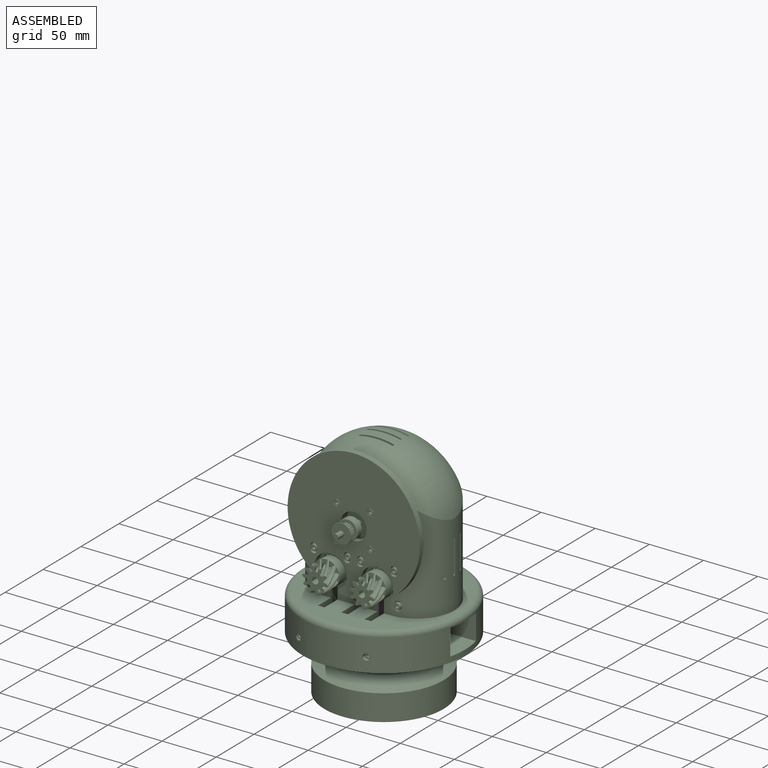
[diagram: assembled view]
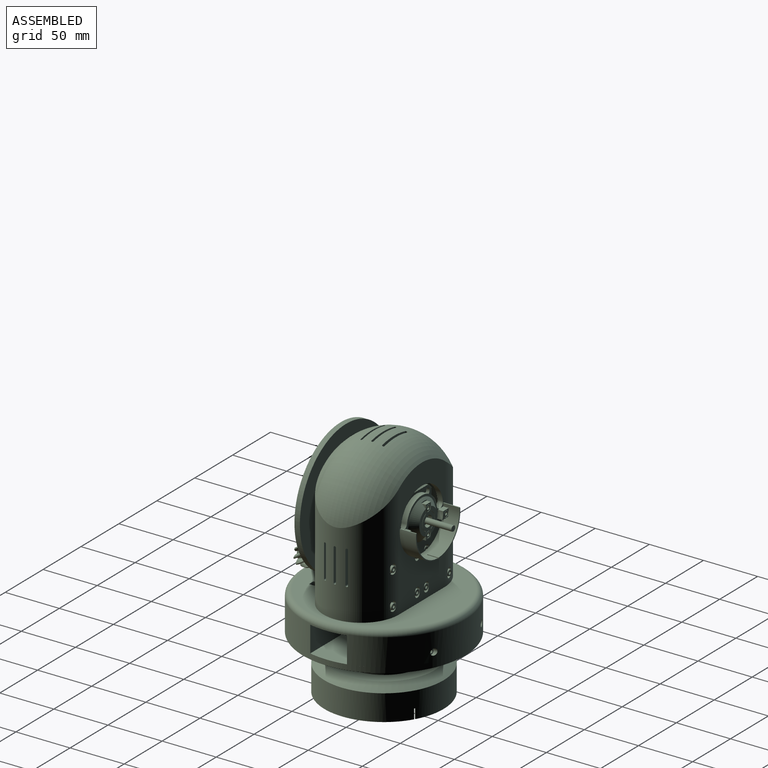
[diagram: assembled view, second angle]
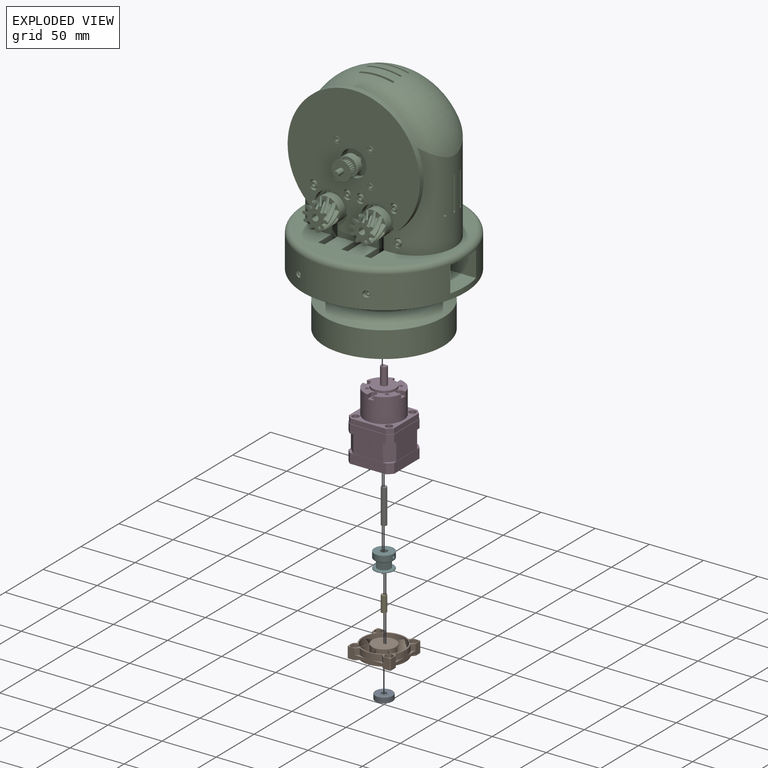
[diagram: exploded view]
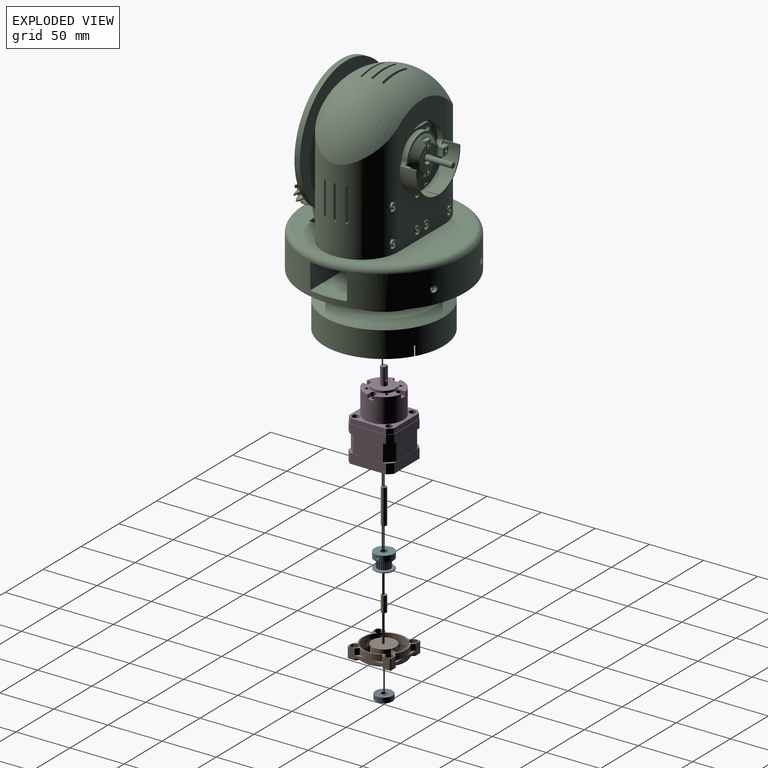
[diagram: exploded view, second angle]
FCSTD DOCUMENT  (FreeCAD 0.19R24276 (Git))
Label: AssemblyArt1
License: All rights reserved
LicenseURL: http://en.wikipedia.org/wiki/All_rights_reserved
objects: Part::FeaturePython×68, App::Link×19, PartDesign::CoordinateSystem×14, PartDesign::Line×12, App::DocumentObjectGroup×8, App::Part×7, Part::Feature×5, Part::Cylinder×2, App::FeaturePython×1
note: 101 computed B-rep shape members (.brp) not serialized (recipe doc carries the construction recipe, not evaluated geometry)
EXTERNAL_REF file=Art1Bot.fcstd obj=LCS_Art1Bot
EXTERNAL_REF file=Art1Bot.fcstd obj=Body001
EXTERNAL_REF file=Art1Bot.fcstd obj=LCS_Top
EXTERNAL_REF file=Art1Top.FCStd obj=LCS_Bot
EXTERNAL_REF file=Art1Top.FCStd obj=Body
EXTERNAL_REF file=Art1FanHolder.FCStd obj=LCS_Body
EXTERNAL_REF file=Art1Top.FCStd obj=LCS_Fan1
EXTERNAL_REF file=Art1FanHolder.FCStd obj=Body
EXTERNAL_REF file=Art1Top.FCStd obj=LCS_Fan2
EXTERNAL_REF file=Art1Body.fcstd obj=LCS_Bot
EXTERNAL_REF file=Art1Top.FCStd obj=LCS_Top
EXTERNAL_REF file=Art1Body.fcstd obj=Body
EXTERNAL_REF file=Art1Body.fcstd obj=LCS_Optodisk
EXTERNAL_REF file=Art23Optodisk.FCStd obj=LCS_Art23Optodisk
EXTERNAL_REF file=Art23Optodisk.FCStd obj=Body
EXTERNAL_REF file=Art1Body.fcstd obj=LCS_Bearing
EXTERNAL_REF file=Art1Body.fcstd obj=LCS_BearingFix
EXTERNAL_REF file=CommonBearingFixThrough.FCStd obj=LCS_CommonBearingFixThrough
EXTERNAL_REF file=CommonBearingFixThrough.FCStd obj=Body
EXTERNAL_REF file=Art1Body.fcstd obj=LCS_Motor2A
EXTERNAL_REF file=Art1Body.fcstd obj=LCS_Motor2V
EXTERNAL_REF file=Art1Body.fcstd obj=LCS_Motor3
EXTERNAL_REF file=Art2MotorGear.FCStd obj=LCS_Art2MotorGear
EXTERNAL_REF file=Art2MotorGear.FCStd obj=Body
EXTERNAL_REF file=Art1FanHolder.FCStd obj=LCS_Fan
EXTERNAL_REF file=Art1Top.FCStd obj=HoleAxis_9
EXTERNAL_REF file=Art1Top.FCStd obj=HoleAxis_8
EXTERNAL_REF file=Art1Top.FCStd obj=HoleAxis_7
EXTERNAL_REF file=Art1Body.fcstd obj=HoleAxis_15
EXTERNAL_REF file=Art1Bot.fcstd obj=HoleAxis_1
EXTERNAL_REF file=Art1Bot.fcstd obj=HoleAxis_3
EXTERNAL_REF file=Art1Bot.fcstd obj=HoleAxis_2
EXTERNAL_REF file=Art1FanHolder.FCStd obj=HoleAxis_7
EXTERNAL_REF file=Art1FanHolder.FCStd obj=HoleAxis_1
EXTERNAL_REF file=Art1FanHolder.FCStd obj=HoleAxis_4
EXTERNAL_REF file=Art1FanHolder.FCStd obj=HoleAxis_6
EXTERNAL_REF file=Art1Top.FCStd obj=HoleAxis_11
EXTERNAL_REF file=Art1Top.FCStd obj=HoleAxis_10
EXTERNAL_REF file=Art1Top.FCStd obj=HoleAxis_6
EXTERNAL_REF file=Art1Top.FCStd obj=HoleAxis_5
EXTERNAL_REF file=Art1Top.FCStd obj=HoleAxis_4
EXTERNAL_REF file=Art1Top.FCStd obj=HoleAxis_3
EXTERNAL_REF file=Art1Top.FCStd obj=HoleAxis_1
EXTERNAL_REF file=Art1Top.FCStd obj=HoleAxis_2
EXTERNAL_REF file=Art1FanHolder.FCStd obj=HoleAxis_5
EXTERNAL_REF file=Art1FanHolder.FCStd obj=HoleAxis_2
EXTERNAL_REF file=Art2BodyACover1.FCStd obj=HoleAxis_1
EXTERNAL_REF file=Art2BodyACover1.FCStd obj=HoleAxis_7
EXTERNAL_REF file=Art2BodyACover1.FCStd obj=HoleAxis_2
EXTERNAL_REF file=Art2BodyACover1.FCStd obj=HoleAxis_6
EXTERNAL_REF file=Art2BodyACover1.FCStd obj=HoleAxis_3
EXTERNAL_REF file=Art2BodyACover1.FCStd obj=HoleAxis_4
EXTERNAL_REF file=Art2BodyACover1.FCStd obj=HoleAxis_5
EXTERNAL_REF file=Art2BodyACover1.FCStd obj=HoleAxis_8
EXTERNAL_REF file=Art1Body.fcstd obj=LCS_Art2BodyCover1
EXTERNAL_REF file=Art2BodyACover1.FCStd obj=LCS_Art2BodyACover1
EXTERNAL_REF file=Art2BodyACover1.FCStd obj=Body
EXTERNAL_REF file=Art1Body.fcstd obj=HoleAxis_5
EXTERNAL_REF file=Art1Body.fcstd obj=HoleAxis_6
EXTERNAL_REF file=Art1Body.fcstd obj=HoleAxis_12
EXTERNAL_REF file=Art1Body.fcstd obj=HoleAxis_11
EXTERNAL_REF file=Art1Body.fcstd obj=HoleAxis_7
EXTERNAL_REF file=Art1Body.fcstd obj=HoleAxis_8
EXTERNAL_REF file=Art1Body.fcstd obj=HoleAxis_10
EXTERNAL_REF file=Art1Body.fcstd obj=HoleAxis_9
EXTERNAL_REF file=Art1Body.fcstd obj=HoleAxis_14
EXTERNAL_REF file=Art1Body.fcstd obj=HoleAxis_16
EXTERNAL_REF file=Art1Body.fcstd obj=HoleAxis_13
EXTERNAL_REF file=CommonBearingFixThrough.FCStd obj=HoleAxis_2
EXTERNAL_REF file=CommonBearingFixThrough.FCStd obj=HoleAxis_1
EXTERNAL_REF file=Art23Optodisk.FCStd obj=HoleAxis_2
EXTERNAL_REF file=Art23Optodisk.FCStd obj=HoleAxis_1
EXTERNAL_REF file=Art1Body.fcstd obj=HoleAxis_3
EXTERNAL_REF file=Art1Body.fcstd obj=HoleAxis_4
EXTERNAL_REF file=Art1Body.fcstd obj=HoleAxis_1
EXTERNAL_REF file=Art1Body.fcstd obj=HoleAxis_2
EXTERNAL_REF file=Art2MotorGear.FCStd obj=HoleAxis_2
EXTERNAL_REF file=Art2MotorGear.FCStd obj=HoleAxis_1

FEATURE [PartDesign::CoordinateSystem] LCS_Origin
  AttacherType = Attacher::AttachEngine3D
  MapMode = 2
  Support = -> [X_Axis]
FEATURE [App::DocumentObjectGroup] Constraints
FEATURE [App::FeaturePython] Variables  # WARN: FeaturePython — macro-defined, semantics opaque (R4)
FEATURE [App::Link] Art1Bot_Art1Bot
  AssemblyType = Asm4EE
  AttachedBy = #LCS_Art1Bot
  AttachedTo = Parent Assembly#LCS_Origin
  AttachmentOffset = pos=(0,0,0) rot=(0.866025,0.5,0;3.14159rad)
  ElementCount = 0
  LinkPlacement = pos=(6.6e-15,-7e-15,-30) rot=(0,0,1;2.61799rad)
  LinkTransform = false
  Placement = pos=(6.6e-15,-7e-15,-30) rot=(0,0,1;2.61799rad)
  Scale = 1
  ScaleVector = (1,1,1)
  ShowElement = true
  expr: Placement = LCS_Origin.Placement * AttachmentOffset * Art1Bot#LCS_Art1Bot.Placement ^ -1
FEATURE [App::Link] Art1Top_Art1Top
  AssemblyType = Asm4EE
  AttachedBy = #LCS_Bot
  AttachedTo = Art1Bot_Art1Bot#LCS_Top
  AttachmentOffset = pos=(0,0,2) rot=(0,0,1;0.711113rad)
  ElementCount = 0
  LinkPlacement = pos=(-0.000356937,0.000307489,7) rot=(0,0,1;4.71239rad)
  LinkTransform = false
  Placement = pos=(-0.000356937,0.000307489,7) rot=(0,0,1;4.71239rad)
  Scale = 1
  ScaleVector = (1,1,1)
  ShowElement = true
  expr: Placement = Art1Bot_Art1Bot.Placement * Art1Bot#LCS_Top.Placement * AttachmentOffset * Art1Top#LCS_Bot.Placement ^ -1
FEATURE [Part::Feature] Part__Feature001  label="fan-40x40mm"
FEATURE [PartDesign::Line] HoleAxis_7
  AttacherType = Attacher::AttachEngineLine
  Length = 6.05899
  MapMode = 19
  Placement = pos=(-15.9948,-15.9948,6.76) rot=(0,0,1;1.5708rad)
  ResizeMode = 1
  Support = -> [Part__Feature001]
FEATURE [PartDesign::Line] HoleAxis_8
  AttacherType = Attacher::AttachEngineLine
  Length = 6.05899
  MapMode = 19
  Placement = pos=(-15.9948,15.9948,6.76) rot=(0,0,1;0rad)
  ResizeMode = 1
  Support = -> [Part__Feature001]
FEATURE [PartDesign::Line] HoleAxis_6
  AttacherType = Attacher::AttachEngineLine
  Length = 6.05899
  MapMode = 19
  Placement = pos=(15.9948,-15.9948,6.76) rot=(0,0,1;3.14159rad)
  ResizeMode = 1
  Support = -> [Part__Feature001]
FEATURE [PartDesign::Line] HoleAxis_5
  AttacherType = Attacher::AttachEngineLine
  Length = 6.05899
  MapMode = 19
  Placement = pos=(15.9948,15.9948,6.76) rot=(0,0,1;4.71239rad)
  ResizeMode = 1
  Support = -> [Part__Feature001]
FEATURE [PartDesign::CoordinateSystem] LCS_0001
  AttacherType = Attacher::AttachEngine3D
  MapMode = 2
  Support = -> [X_Axis002]
FEATURE [PartDesign::CoordinateSystem] LCS_Fan001
  AttacherType = Attacher::AttachEngine3D
  AttachmentOffset = pos=(0,0,-2.21) rot=(0,0,1;0rad)
  MapMode = 45
  Placement = pos=(-5e-16,5e-16,-4e-16) rot=(0,0,1;0rad)
  Support = -> [Part__Feature001]
FEATURE [App::Part] Fan_40x40
  Group = -> [LCS_0001,Part__Feature001,LCS_Fan001,HoleAxis_5,HoleAxis_6,HoleAxis_7,HoleAxis_8]
  Origin = -> Origin002
FEATURE [App::DocumentObjectGroup] Group001  label="Fans"
  Group = -> [Fan_40x40]
FEATURE [App::Link] Art1FanHolder_Art1FanHolder
  AssemblyType = Asm4EE
  AttachedBy = #LCS_Body
  AttachedTo = Art1Top_Art1Top#LCS_Fan1
  AttachmentOffset = pos=(0,0,0) rot=(0,1,0;3.14159rad)
  ElementCount = 0
  LinkPlacement = pos=(40.869,0.000324113,37.8693) rot=(0.357407,0.357407,-0.862856;4.56541rad)
  LinkTransform = false
  Placement = pos=(40.869,0.000324113,37.8693) rot=(0.357407,0.357407,-0.862856;4.56541rad)
  Scale = 1
  ScaleVector = (1,1,1)
  ShowElement = true
  expr: Placement = Art1Top_Art1Top.Placement * Art1Top#LCS_Fan1.Placement * AttachmentOffset * Art1FanHolder#LCS_Body.Placement ^ -1
FEATURE [App::Link] Art1FanHolder_Art1FanHolder001
  AssemblyType = Asm4EE
  AttachedBy = #LCS_Body
  AttachedTo = Art1Top_Art1Top#LCS_Fan2
  AttachmentOffset = pos=(0,0,0) rot=(0,0,1;3.14159rad)
  ElementCount = 0
  LinkPlacement = pos=(-40.8697,0.000290866,37.8693) rot=(0.357407,-0.357407,0.862856;4.56541rad)
  LinkTransform = false
  Placement = pos=(-40.8697,0.000290866,37.8693) rot=(0.357407,-0.357407,0.862856;4.56541rad)
  Scale = 1
  ScaleVector = (1,1,1)
  ShowElement = true
  expr: Placement = Art1Top_Art1Top.Placement * Art1Top#LCS_Fan2.Placement * AttachmentOffset * Art1FanHolder#LCS_Body.Placement ^ -1
FEATURE [App::Link] Art1Body_Art1Body
  AssemblyType = Asm4EE
  AttachedBy = #LCS_Bot
  AttachedTo = Art1Top_Art1Top#LCS_Top
  ElementCount = 0
  LinkPlacement = pos=(-0.000356937,0.000307489,25) rot=(0,0,-1;6.28318rad)
  LinkTransform = false
  Placement = pos=(-0.000356937,0.000307489,25) rot=(0,0,-1;6.28318rad)
  Scale = 1
  ScaleVector = (1,1,1)
  ShowElement = true
  expr: Placement = Art1Top_Art1Top.Placement * Art1Top#LCS_Top.Placement * AttachmentOffset * Art1Body#LCS_Bot.Placement ^ -1
FEATURE [App::Link] Art23Optodisk_Art23Optodisk
  AssemblyType = Asm4EE
  AttachedBy = #LCS_Art23Optodisk
  AttachedTo = Art1Body_Art1Body#LCS_Optodisk
  AttachmentOffset = pos=(0,0,0) rot=(0,0,1;3.14159rad)
  ElementCount = 0
  LinkPlacement = pos=(-0.000371174,35.0003,123) rot=(1,0,0;4.71239rad)
  LinkTransform = false
  Placement = pos=(-0.000371174,35.0003,123) rot=(1,0,0;4.71239rad)
  Scale = 1
  ScaleVector = (1,1,1)
  ShowElement = true
  expr: Placement = Art1Body_Art1Body.Placement * Art1Body#LCS_Optodisk.Placement * AttachmentOffset * Art23Optodisk#LCS_Art23Optodisk.Placement ^ -1
FEATURE [PartDesign::CoordinateSystem] LCS_0
  AttacherType = Attacher::AttachEngine3D
  MapMode = 2
  Support = -> [X_Axis003]
FEATURE [Part::Feature] Compound001  label="Bearing 625ZZ"
FEATURE [App::Part] Bearing_625ZZ
  Group = -> [LCS_0,Compound001]
  Origin = -> Origin003
FEATURE [App::DocumentObjectGroup] Group  label="Bearing"
  Group = -> [Bearing_625ZZ]
FEATURE [App::Link] Bearing_625ZZ001
  AssemblyType = Asm4EE
  AttachedBy = #LCS_0
  AttachedTo = Art1Body_Art1Body#LCS_Bearing
  ElementCount = 0
  LinkPlacement = pos=(-0.000369953,32.0003,123) rot=(1,0,0;4.71239rad)
  LinkTransform = false
  Placement = pos=(-0.000369953,32.0003,123) rot=(1,0,0;4.71239rad)
  Scale = 1
  ScaleVector = (1,1,1)
  ShowElement = true
  expr: Placement = Art1Body_Art1Body.Placement * Art1Body#LCS_Bearing.Placement * AttachmentOffset * LCS_0.Placement ^ -1
FEATURE [App::Link] CommonBearingFixThrough_CommonBearingFixThrough
  AssemblyType = Asm4EE
  AttachedBy = #LCS_CommonBearingFixThrough
  AttachedTo = Art1Body_Art1Body#LCS_BearingFix
  ElementCount = 0
  LinkPlacement = pos=(-0.000371987,37.0003,123) rot=(0.57735,0.57735,0.57735;4.18879rad)
  LinkTransform = false
  Placement = pos=(-0.000371987,37.0003,123) rot=(0.57735,0.57735,0.57735;4.18879rad)
  Scale = 1
  ScaleVector = (1,1,1)
  ShowElement = true
  expr: Placement = Art1Body_Art1Body.Placement * Art1Body#LCS_BearingFix.Placement * AttachmentOffset * CommonBearingFixThrough#LCS_CommonBearingFixThrough.Placement ^ -1
FEATURE [Part::Feature] Pocket007001  label="Nema17GearBox"
FEATURE [PartDesign::CoordinateSystem] LCS_Nema17_GearBox
  AttacherType = Attacher::AttachEngine3D
  MapMode = 45
  Placement = pos=(1.59e-14,0,37.75) rot=(0,0,-1;0rad)
  Support = -> [Pocket007001]
FEATURE [App::Link] Nema17_GearBox001
  AssemblyType = Asm4EE
  AttachedBy = #LCS_Nema17_GearBox
  AttachedTo = Art1Body_Art1Body#LCS_Motor2A
  AttachmentOffset = pos=(0,0,-22.5) rot=(0,0,1;0rad)
  ElementCount = 0
  LinkPlacement = pos=(21.4996,29.0503,79.7) rot=(-0.57735,0.57735,-0.57735;4.18879rad)
  LinkTransform = false
  Placement = pos=(21.4996,29.0503,79.7) rot=(-0.57735,0.57735,-0.57735;4.18879rad)
  Scale = 1
  ScaleVector = (1,1,1)
  ShowElement = true
  expr: Placement = Art1Body_Art1Body.Placement * Art1Body#LCS_Motor2A.Placement * AttachmentOffset * LCS_Nema17_GearBox.Placement ^ -1
FEATURE [App::Link] Nema17_GearBox002
  AssemblyType = Asm4EE
  AttachedBy = #LCS_Nema17_GearBox
  AttachedTo = Art1Body_Art1Body#LCS_Motor2V
  AttachmentOffset = pos=(0,0,-22.5) rot=(0,0,1;0rad)
  ElementCount = 0
  LinkPlacement = pos=(-21.5004,29.0503,79.7) rot=(-0.57735,0.57735,-0.57735;4.18879rad)
  LinkTransform = false
  Placement = pos=(-21.5004,29.0503,79.7) rot=(-0.57735,0.57735,-0.57735;4.18879rad)
  Scale = 1
  ScaleVector = (1,1,1)
  ShowElement = true
  expr: Placement = Art1Body_Art1Body.Placement * Art1Body#LCS_Motor2V.Placement * AttachmentOffset * LCS_Nema17_GearBox.Placement ^ -1
FEATURE [App::Link] Nema17_GearBox003
  AssemblyType = Asm4EE
  AttachedBy = #LCS_Nema17_GearBox
  AttachedTo = Art1Body_Art1Body#LCS_Motor3
  AttachmentOffset = pos=(0,0,-22.5) rot=(0,0,1;0rad)
  ElementCount = 0
  LinkPlacement = pos=(-0.000368753,29.0503,123) rot=(-0.57735,0.57735,-0.57735;4.18879rad)
  LinkTransform = false
  Placement = pos=(-0.000368753,29.0503,123) rot=(-0.57735,0.57735,-0.57735;4.18879rad)
  Scale = 1
  ScaleVector = (1,1,1)
  ShowElement = true
  expr: Placement = Art1Body_Art1Body.Placement * Art1Body#LCS_Motor3.Placement * AttachmentOffset * LCS_Nema17_GearBox.Placement ^ -1
FEATURE [PartDesign::CoordinateSystem] LCS_Nema17_Gear
  AttacherType = Attacher::AttachEngine3D
  MapMode = 11
  Placement = pos=(9e-16,-4e-16,66.3) rot=(0.912871,0.408248,0;3.14159rad)
  Support = -> [Pocket007001]
FEATURE [App::Link] Art2MotorGear_Art2MotorGear
  AssemblyType = Asm4EE
  AttachedBy = #LCS_Art2MotorGear
  AttachedTo = Nema17_GearBox002#LCS_Nema17_Gear
  AttachmentOffset = pos=(0,0,0) rot=(0,0,1;1.5708rad)
  ElementCount = 0
  LinkPlacement = pos=(-21.5003,-45.2497,79.7) rot=(-0.518207,-0.604757,0.604757;4.09781rad)
  LinkTransform = false
  Placement = pos=(-21.5003,-45.2497,79.7) rot=(-0.518207,-0.604757,0.604757;4.09781rad)
  Scale = 1
  ScaleVector = (1,1,1)
  ShowElement = true
  expr: Placement = Nema17_GearBox002.Placement * LCS_Nema17_Gear.Placement * AttachmentOffset * Art2MotorGear#LCS_Art2MotorGear.Placement ^ -1
FEATURE [App::Link] Art2MotorGear_Art2MotorGear001
  AssemblyType = Asm4EE
  AttachedBy = #LCS_Art2MotorGear
  AttachedTo = Nema17_GearBox001#LCS_Nema17_Gear
  AttachmentOffset = pos=(0,0,0) rot=(0,0,1;1.5708rad)
  ElementCount = 0
  LinkPlacement = pos=(21.4997,-45.2497,79.7) rot=(-0.518207,-0.604757,0.604757;4.09781rad)
  LinkTransform = false
  Placement = pos=(21.4997,-45.2497,79.7) rot=(-0.518207,-0.604757,0.604757;4.09781rad)
  Scale = 1
  ScaleVector = (1,1,1)
  ShowElement = true
  expr: Placement = Nema17_GearBox001.Placement * LCS_Nema17_Gear.Placement * AttachmentOffset * Art2MotorGear#LCS_Art2MotorGear.Placement ^ -1
FEATURE [App::Link] Fan_40x40001
  AssemblyType = Asm4EE
  AttachedBy = #LCS_Fan001
  AttachedTo = Art1FanHolder_Art1FanHolder001#LCS_Fan
  AttachmentOffset = pos=(0,0,3) rot=(0,0,1;0rad)
  ElementCount = 0
  LinkPlacement = pos=(-38.7484,0.000291729,39.9907) rot=(0.357407,-0.357407,0.862856;4.56541rad)
  LinkTransform = false
  Placement = pos=(-38.7484,0.000291729,39.9907) rot=(0.357407,-0.357407,0.862856;4.56541rad)
  Scale = 1
  ScaleVector = (1,1,1)
  ShowElement = true
  expr: Placement = Art1FanHolder_Art1FanHolder001.Placement * Art1FanHolder#LCS_Fan.Placement * AttachmentOffset * LCS_Fan001.Placement ^ -1
FEATURE [App::Link] Fan_40x40002
  AssemblyType = Asm4EE
  AttachedBy = #LCS_Fan001
  AttachedTo = Art1FanHolder_Art1FanHolder#LCS_Fan
  AttachmentOffset = pos=(0,0,3) rot=(0,0,1;0rad)
  ElementCount = 0
  LinkPlacement = pos=(38.7477,0.00032325,39.9907) rot=(0.357407,0.357407,-0.862856;4.56541rad)
  LinkTransform = false
  Placement = pos=(38.7477,0.00032325,39.9907) rot=(0.357407,0.357407,-0.862856;4.56541rad)
  Scale = 1
  ScaleVector = (1,1,1)
  ShowElement = true
  expr: Placement = Art1FanHolder_Art1FanHolder.Placement * Art1FanHolder#LCS_Fan.Placement * AttachmentOffset * LCS_Fan001.Placement ^ -1
FEATURE [Part::FeaturePython] Screw  label="M3x25-Screw"  # WARN: FeaturePython — macro-defined, semantics opaque (R4)
  AssemblyType = Asm4EE
  AttachedBy = Origin
  AttachedTo = Art1Top_Art1Top#HoleAxis_9
  Placement = pos=(14.9996,25.9811,22) rot=(0,0,-1;0.523598rad)
  diameter = 4
  invert = false
  length = 8
  lengthCustom = 25
  matchOuter = false
  offset = 0
  thread = false
  type = 33
  expr: Placement = Art1Top_Art1Top.Placement * Art1Top#HoleAxis_9.Placement * AttachmentOffset
FEATURE [Part::FeaturePython] Screw001  label="M3x25-Screw005"  # WARN: FeaturePython — macro-defined, semantics opaque (R4)
  AssemblyType = Asm4EE
  AttachedBy = Origin
  AttachedTo = Art1Top_Art1Top#HoleAxis_8
  Placement = pos=(14.9997,-25.9804,22) rot=(0,0,1;3.66519rad)
  diameter = 4
  invert = false
  length = 8
  lengthCustom = 25
  matchOuter = false
  offset = 0
  thread = false
  type = 33
  expr: Placement = Art1Top_Art1Top.Placement * Art1Top#HoleAxis_8.Placement * AttachmentOffset
FEATURE [Part::FeaturePython] Screw002  label="M3x25-Screw006"  # WARN: FeaturePython — macro-defined, semantics opaque (R4)
  AssemblyType = Asm4EE
  AttachedBy = Origin
  AttachedTo = Art1Top_Art1Top#HoleAxis_7
  Placement = pos=(-30.0004,0.000295287,22) rot=(0,0,1;1.5708rad)
  diameter = 4
  invert = false
  length = 8
  lengthCustom = 25
  matchOuter = false
  offset = 0
  thread = false
  type = 33
  expr: Placement = Art1Top_Art1Top.Placement * Art1Top#HoleAxis_7.Placement * AttachmentOffset
FEATURE [Part::FeaturePython] Nut  label="M3-Nut"  # WARN: FeaturePython — macro-defined, semantics opaque (R4)
  AssemblyType = Asm4EE
  AttachedBy = Origin
  AttachedTo = Art1Body_Art1Body#HoleAxis_15
  AttachmentOffset = pos=(0,0,0) rot=(1,0,0;3.14159rad)
  Placement = pos=(-0.00037036,33.0003,134) rot=(0,0.707107,-0.707107;3.14159rad)
  diameter = 4
  invert = false
  matchOuter = false
  offset = 0
  thread = false
  type = 7
  expr: Placement = Art1Body_Art1Body.Placement * Art1Body#HoleAxis_15.Placement * AttachmentOffset
FEATURE [Part::FeaturePython] Nut001  label="M3-Nut054"  # WARN: FeaturePython — macro-defined, semantics opaque (R4)
  AssemblyType = Asm4EE
  AttachedBy = Origin
  AttachedTo = Art1Bot_Art1Bot#HoleAxis_1
  Placement = pos=(14.9997,25.981,-0.999941) rot=(0.258819,0.965926,-3e-06;3.14158rad)
  diameter = 4
  invert = false
  matchOuter = false
  offset = 0
  thread = false
  type = 7
  expr: Placement = Art1Bot_Art1Bot.Placement * Art1Bot#HoleAxis_1.Placement * AttachmentOffset
FEATURE [Part::FeaturePython] Nut002  label="M3-Nut052"  # WARN: FeaturePython — macro-defined, semantics opaque (R4)
  AssemblyType = Asm4EE
  AttachedBy = Origin
  AttachedTo = Art1Bot_Art1Bot#HoleAxis_3
  Placement = pos=(14.9997,-25.9805,-0.999484) rot=(0.965926,0.258819,4e-06;3.14158rad)
  diameter = 4
  invert = false
  matchOuter = false
  offset = 0
  thread = false
  type = 7
  expr: Placement = Art1Bot_Art1Bot.Placement * Art1Bot#HoleAxis_3.Placement * AttachmentOffset
FEATURE [Part::FeaturePython] Nut003  label="M3-Nut053"  # WARN: FeaturePython — macro-defined, semantics opaque (R4)
  AssemblyType = Asm4EE
  AttachedBy = Origin
  AttachedTo = Art1Bot_Art1Bot#HoleAxis_2
  Placement = pos=(-30.0003,0.000254776,-1.00017) rot=(0.707107,-0.707107,7e-06;3.14159rad)
  diameter = 4
  invert = false
  matchOuter = false
  offset = 0
  thread = false
  type = 7
  expr: Placement = Art1Bot_Art1Bot.Placement * Art1Bot#HoleAxis_2.Placement * AttachmentOffset
FEATURE [Part::FeaturePython] Nut004  label="M3-Nut057"  # WARN: FeaturePython — macro-defined, semantics opaque (R4)
  AssemblyType = Asm4EE
  AttachedBy = Origin
  AttachedTo = Art1FanHolder_Art1FanHolder#HoleAxis_7
  Placement = pos=(50.4149,-15.9997,50.9508) rot=(0.678598,0.678598,0.281085;2.59356rad)
  diameter = 4
  invert = false
  matchOuter = false
  offset = 0
  thread = false
  type = 7
  expr: Placement = Art1FanHolder_Art1FanHolder.Placement * Art1FanHolder#HoleAxis_7.Placement * AttachmentOffset
FEATURE [Part::FeaturePython] Nut005  label="M3-Nut058"  # WARN: FeaturePython — macro-defined, semantics opaque (R4)
  AssemblyType = Asm4EE
  AttachedBy = Origin
  AttachedTo = Art1FanHolder_Art1FanHolder#HoleAxis_1
  Placement = pos=(27.7875,-15.9997,28.3234) rot=(0.678598,0.678598,0.281085;2.59356rad)
  diameter = 4
  invert = false
  matchOuter = false
  offset = 0
  thread = false
  type = 7
  expr: Placement = Art1FanHolder_Art1FanHolder.Placement * Art1FanHolder#HoleAxis_1.Placement * AttachmentOffset
FEATURE [Part::FeaturePython] Nut006  label="M3-Nut055"  # WARN: FeaturePython — macro-defined, semantics opaque (R4)
  AssemblyType = Asm4EE
  AttachedBy = Origin
  AttachedTo = Art1FanHolder_Art1FanHolder#HoleAxis_4
  Placement = pos=(27.7875,16.0003,28.3234) rot=(0.678598,0.678598,0.281085;2.59356rad)
  diameter = 4
  invert = false
  matchOuter = false
  offset = 0
  thread = false
  type = 7
  expr: Placement = Art1FanHolder_Art1FanHolder.Placement * Art1FanHolder#HoleAxis_4.Placement * AttachmentOffset
FEATURE [Part::FeaturePython] Nut007  label="M3-Nut059"  # WARN: FeaturePython — macro-defined, semantics opaque (R4)
  AssemblyType = Asm4EE
  AttachedBy = Origin
  AttachedTo = Art1FanHolder_Art1FanHolder#HoleAxis_6
  Placement = pos=(50.4149,16.0003,50.9508) rot=(0.678598,0.678598,0.281085;2.59356rad)
  diameter = 4
  invert = false
  matchOuter = false
  offset = 0
  thread = false
  type = 7
  expr: Placement = Art1FanHolder_Art1FanHolder.Placement * Art1FanHolder#HoleAxis_6.Placement * AttachmentOffset
FEATURE [Part::FeaturePython] Nut008  label="M3-Nut056"  # WARN: FeaturePython — macro-defined, semantics opaque (R4)
  AssemblyType = Asm4EE
  AttachedBy = Origin
  AttachedTo = Art1FanHolder_Art1FanHolder001#HoleAxis_6
  Placement = pos=(-50.4156,-15.9997,50.9508) rot=(0.678598,-0.678598,-0.281085;2.59356rad)
  diameter = 4
  invert = false
  matchOuter = false
  offset = 0
  thread = false
  type = 7
  expr: Placement = Art1FanHolder_Art1FanHolder001.Placement * Art1FanHolder#HoleAxis_6.Placement * AttachmentOffset
FEATURE [Part::FeaturePython] Nut009  label="M3-Nut060"  # WARN: FeaturePython — macro-defined, semantics opaque (R4)
  AssemblyType = Asm4EE
  AttachedBy = Origin
  AttachedTo = Art1FanHolder_Art1FanHolder001#HoleAxis_7
  Placement = pos=(-50.4156,16.0003,50.9508) rot=(0.678598,-0.678598,-0.281085;2.59356rad)
  diameter = 4
  invert = false
  matchOuter = false
  offset = 0
  thread = false
  type = 7
  expr: Placement = Art1FanHolder_Art1FanHolder001.Placement * Art1FanHolder#HoleAxis_7.Placement * AttachmentOffset
FEATURE [Part::FeaturePython] Nut010  label="M3-Nut061"  # WARN: FeaturePython — macro-defined, semantics opaque (R4)
  AssemblyType = Asm4EE
  AttachedBy = Origin
  AttachedTo = Art1FanHolder_Art1FanHolder001#HoleAxis_4
  Placement = pos=(-27.7882,-15.9997,28.3234) rot=(0.678598,-0.678598,-0.281085;2.59356rad)
  diameter = 4
  invert = false
  matchOuter = false
  offset = 0
  thread = false
  type = 7
  expr: Placement = Art1FanHolder_Art1FanHolder001.Placement * Art1FanHolder#HoleAxis_4.Placement * AttachmentOffset
FEATURE [Part::FeaturePython] Nut011  label="M3-Nut062"  # WARN: FeaturePython — macro-defined, semantics opaque (R4)
  AssemblyType = Asm4EE
  AttachedBy = Origin
  AttachedTo = Art1FanHolder_Art1FanHolder001#HoleAxis_1
  Placement = pos=(-27.7882,16.0003,28.3234) rot=(0.678598,-0.678598,-0.281085;2.59356rad)
  diameter = 4
  invert = false
  matchOuter = false
  offset = 0
  thread = false
  type = 7
  expr: Placement = Art1FanHolder_Art1FanHolder001.Placement * Art1FanHolder#HoleAxis_1.Placement * AttachmentOffset
FEATURE [Part::FeaturePython] Screw003  label="M3x8-Screw"  # WARN: FeaturePython — macro-defined, semantics opaque (R4)
  AssemblyType = Asm4EE
  AttachedBy = Origin
  AttachedTo = Fan_40x40001#HoleAxis_6
  Placement = pos=(-45.2783,-15.9945,56.0807) rot=(0.357407,0.357407,0.862856;1.71777rad)
  diameter = 4
  invert = false
  length = 2
  lengthCustom = 8
  matchOuter = false
  offset = 0
  thread = false
  type = 33
  expr: Placement = Fan_40x40001.Placement * HoleAxis_6.Placement * AttachmentOffset
FEATURE [Part::FeaturePython] Screw004  label="M3x8-Screw071"  # WARN: FeaturePython — macro-defined, semantics opaque (R4)
  AssemblyType = Asm4EE
  AttachedBy = Origin
  AttachedTo = Fan_40x40001#HoleAxis_5
  Placement = pos=(-22.6583,-15.9945,33.4607) rot=(0.382683,0,0.92388;3.14159rad)
  diameter = 4
  invert = false
  length = 2
  lengthCustom = 8
  matchOuter = false
  offset = 0
  thread = false
  type = 33
  expr: Placement = Fan_40x40001.Placement * HoleAxis_5.Placement * AttachmentOffset
FEATURE [Part::FeaturePython] Screw005  label="M3x8-Screw070"  # WARN: FeaturePython — macro-defined, semantics opaque (R4)
  AssemblyType = Asm4EE
  AttachedBy = Origin
  AttachedTo = Fan_40x40001#HoleAxis_8
  Placement = pos=(-22.6583,15.9951,33.4607) rot=(-0.357407,0.357407,-0.862856;1.71777rad)
  diameter = 4
  invert = false
  length = 2
  lengthCustom = 8
  matchOuter = false
  offset = 0
  thread = false
  type = 33
  expr: Placement = Fan_40x40001.Placement * HoleAxis_8.Placement * AttachmentOffset
FEATURE [Part::FeaturePython] Screw006  label="M3x8-Screw078"  # WARN: FeaturePython — macro-defined, semantics opaque (R4)
  AssemblyType = Asm4EE
  AttachedBy = Origin
  AttachedTo = Fan_40x40001#HoleAxis_7
  Placement = pos=(-45.2783,15.995,56.0807) rot=(0,1,0;0.785398rad)
  diameter = 4
  invert = false
  length = 2
  lengthCustom = 8
  matchOuter = false
  offset = 0
  thread = false
  type = 33
  expr: Placement = Fan_40x40001.Placement * HoleAxis_7.Placement * AttachmentOffset
FEATURE [Part::FeaturePython] Screw007  label="M3x8-Screw072"  # WARN: FeaturePython — macro-defined, semantics opaque (R4)
  AssemblyType = Asm4EE
  AttachedBy = Origin
  AttachedTo = Fan_40x40002#HoleAxis_5
  Placement = pos=(22.6576,15.9951,33.4607) rot=(0,-1,0;0.785398rad)
  diameter = 4
  invert = false
  length = 2
  lengthCustom = 8
  matchOuter = false
  offset = 0
  thread = false
  type = 33
  expr: Placement = Fan_40x40002.Placement * HoleAxis_5.Placement * AttachmentOffset
FEATURE [Part::FeaturePython] Screw008  label="M3x8-Screw075"  # WARN: FeaturePython — macro-defined, semantics opaque (R4)
  AssemblyType = Asm4EE
  AttachedBy = Origin
  AttachedTo = Fan_40x40002#HoleAxis_8
  Placement = pos=(22.6576,-15.9944,33.4607) rot=(-0.357407,-0.357407,0.862856;1.71777rad)
  diameter = 4
  invert = false
  length = 2
  lengthCustom = 8
  matchOuter = false
  offset = 0
  thread = false
  type = 33
  expr: Placement = Fan_40x40002.Placement * HoleAxis_8.Placement * AttachmentOffset
FEATURE [Part::FeaturePython] Screw009  label="M3x8-Screw073"  # WARN: FeaturePython — macro-defined, semantics opaque (R4)
  AssemblyType = Asm4EE
  AttachedBy = Origin
  AttachedTo = Fan_40x40002#HoleAxis_6
  Placement = pos=(45.2776,15.9951,56.0807) rot=(0.357407,-0.357407,-0.862856;1.71777rad)
  diameter = 4
  invert = false
  length = 2
  lengthCustom = 8
  matchOuter = false
  offset = 0
  thread = false
  type = 33
  expr: Placement = Fan_40x40002.Placement * HoleAxis_6.Placement * AttachmentOffset
FEATURE [Part::FeaturePython] Screw010  label="M3x8-Screw074"  # WARN: FeaturePython — macro-defined, semantics opaque (R4)
  AssemblyType = Asm4EE
  AttachedBy = Origin
  AttachedTo = Fan_40x40002#HoleAxis_7
  Placement = pos=(45.2776,-15.9944,56.0807) rot=(-0.382683,0,0.92388;3.14159rad)
  diameter = 4
  invert = false
  length = 2
  lengthCustom = 8
  matchOuter = false
  offset = 0
  thread = false
  type = 33
  expr: Placement = Fan_40x40002.Placement * HoleAxis_7.Placement * AttachmentOffset
FEATURE [Part::FeaturePython] Nut012  label="M3-Nut069"  # WARN: FeaturePython — macro-defined, semantics opaque (R4)
  AssemblyType = Asm4EE
  AttachedBy = Origin
  AttachedTo = Art1Top_Art1Top#HoleAxis_11
  AttachmentOffset = pos=(0,0,0) rot=(1,0,0;3.14159rad)
  Placement = pos=(-42.2839,26.0003,36.4551) rot=(0.678598,-0.678598,-0.281085;2.59356rad)
  diameter = 4
  invert = false
  matchOuter = false
  offset = 0
  thread = false
  type = 7
  expr: Placement = Art1Top_Art1Top.Placement * Art1Top#HoleAxis_11.Placement * AttachmentOffset
FEATURE [Part::FeaturePython] Nut013  label="M3-Nut063"  # WARN: FeaturePython — macro-defined, semantics opaque (R4)
  AssemblyType = Asm4EE
  AttachedBy = Origin
  AttachedTo = Art1Top_Art1Top#HoleAxis_10
  AttachmentOffset = pos=(0,0,0) rot=(1,0,0;3.14159rad)
  Placement = pos=(-42.2839,-25.9997,36.4551) rot=(0.678598,0.678598,-0.281085;3.68962rad)
  diameter = 4
  invert = false
  matchOuter = false
  offset = 0
  thread = false
  type = 7
  expr: Placement = Art1Top_Art1Top.Placement * Art1Top#HoleAxis_10.Placement * AttachmentOffset
FEATURE [Part::FeaturePython] Nut014  label="M3-Nut065"  # WARN: FeaturePython — macro-defined, semantics opaque (R4)
  AssemblyType = Asm4EE
  AttachedBy = Origin
  AttachedTo = Art1Top_Art1Top#HoleAxis_6
  AttachmentOffset = pos=(0,0,0) rot=(1,0,0;3.14159rad)
  Placement = pos=(42.2832,-25.9997,36.4551) rot=(0.678598,0.678598,0.281085;2.59356rad)
  diameter = 4
  invert = false
  matchOuter = false
  offset = 0
  thread = false
  type = 7
  expr: Placement = Art1Top_Art1Top.Placement * Art1Top#HoleAxis_6.Placement * AttachmentOffset
FEATURE [Part::FeaturePython] Nut015  label="M3-Nut066"  # WARN: FeaturePython — macro-defined, semantics opaque (R4)
  AssemblyType = Asm4EE
  AttachedBy = Origin
  AttachedTo = Art1Top_Art1Top#HoleAxis_5
  AttachmentOffset = pos=(0,0,0) rot=(1,0,0;3.14159rad)
  Placement = pos=(42.2832,26.0003,36.4551) rot=(0.678598,-0.678598,0.281085;3.68962rad)
  diameter = 4
  invert = false
  matchOuter = false
  offset = 0
  thread = false
  type = 7
  expr: Placement = Art1Top_Art1Top.Placement * Art1Top#HoleAxis_5.Placement * AttachmentOffset
FEATURE [Part::FeaturePython] Nut016  label="M3-Nut064"  # WARN: FeaturePython — macro-defined, semantics opaque (R4)
  AssemblyType = Asm4EE
  AttachedBy = Origin
  AttachedTo = Art1Top_Art1Top#HoleAxis_4
  Placement = pos=(31.4996,48.5003,33) rot=(-0.57735,-0.57735,-0.57735;2.0944rad)
  diameter = 4
  invert = false
  matchOuter = false
  offset = 0
  thread = false
  type = 7
  expr: Placement = Art1Top_Art1Top.Placement * Art1Top#HoleAxis_4.Placement * AttachmentOffset
FEATURE [Part::FeaturePython] Nut017  label="M3-Nut067"  # WARN: FeaturePython — macro-defined, semantics opaque (R4)
  AssemblyType = Asm4EE
  AttachedBy = Origin
  AttachedTo = Art1Top_Art1Top#HoleAxis_3
  AttachmentOffset = pos=(0,0,0) rot=(1,0,0;3.14159rad)
  Placement = pos=(-31.5004,48.5003,33) rot=(-0.57735,-0.57735,-0.57735;2.0944rad)
  diameter = 4
  invert = false
  matchOuter = false
  offset = 0
  thread = false
  type = 7
  expr: Placement = Art1Top_Art1Top.Placement * Art1Top#HoleAxis_3.Placement * AttachmentOffset
FEATURE [Part::FeaturePython] Nut018  label="M3-Nut068"  # WARN: FeaturePython — macro-defined, semantics opaque (R4)
  AssemblyType = Asm4EE
  AttachedBy = Origin
  AttachedTo = Art1Top_Art1Top#HoleAxis_1
  AttachmentOffset = pos=(0,0,0) rot=(1,0,0;3.14159rad)
  Placement = pos=(31.4997,-51.4997,33) rot=(-0.57735,-0.57735,-0.57735;2.0944rad)
  diameter = 4
  invert = false
  matchOuter = false
  offset = 0
  thread = false
  type = 7
  expr: Placement = Art1Top_Art1Top.Placement * Art1Top#HoleAxis_1.Placement * AttachmentOffset
FEATURE [Part::FeaturePython] Nut019  label="M3-Nut070"  # WARN: FeaturePython — macro-defined, semantics opaque (R4)
  AssemblyType = Asm4EE
  AttachedBy = Origin
  AttachedTo = Art1Top_Art1Top#HoleAxis_2
  AttachmentOffset = pos=(0,0,0) rot=(1,0,0;3.14159rad)
  Placement = pos=(-31.5003,-51.4997,33) rot=(-0.57735,-0.57735,-0.57735;2.0944rad)
  diameter = 4
  invert = false
  matchOuter = false
  offset = 0
  thread = false
  type = 7
  expr: Placement = Art1Top_Art1Top.Placement * Art1Top#HoleAxis_2.Placement * AttachmentOffset
FEATURE [Part::FeaturePython] Screw011  label="M3x8-Screw061"  # WARN: FeaturePython — macro-defined, semantics opaque (R4)
  AssemblyType = Asm4EE
  AttachedBy = Origin
  AttachedTo = Art1FanHolder_Art1FanHolder001#HoleAxis_5
  Placement = pos=(-38.7484,-25.9997,39.9907) rot=(-0.357407,0.357407,-0.862856;1.71777rad)
  diameter = 4
  invert = false
  length = 2
  lengthCustom = 8
  matchOuter = false
  offset = 0
  thread = false
  type = 33
  expr: Placement = Art1FanHolder_Art1FanHolder001.Placement * Art1FanHolder#HoleAxis_5.Placement * AttachmentOffset
FEATURE [Part::FeaturePython] Screw012  label="M3x8-Screw056"  # WARN: FeaturePython — macro-defined, semantics opaque (R4)
  AssemblyType = Asm4EE
  AttachedBy = Origin
  AttachedTo = Art1FanHolder_Art1FanHolder001#HoleAxis_2
  Placement = pos=(-38.7484,26.0003,39.9907) rot=(-0.357407,0.357407,-0.862856;1.71777rad)
  diameter = 4
  invert = false
  length = 2
  lengthCustom = 8
  matchOuter = false
  offset = 0
  thread = false
  type = 33
  expr: Placement = Art1FanHolder_Art1FanHolder001.Placement * Art1FanHolder#HoleAxis_2.Placement * AttachmentOffset
FEATURE [Part::FeaturePython] Screw013  label="M3x8-Screw062"  # WARN: FeaturePython — macro-defined, semantics opaque (R4)
  AssemblyType = Asm4EE
  AttachedBy = Origin
  AttachedTo = Art1FanHolder_Art1FanHolder#HoleAxis_2
  Placement = pos=(38.7477,-25.9997,39.9907) rot=(-0.357407,-0.357407,0.862856;1.71777rad)
  diameter = 4
  invert = false
  length = 2
  lengthCustom = 8
  matchOuter = false
  offset = 0
  thread = false
  type = 33
  expr: Placement = Art1FanHolder_Art1FanHolder.Placement * Art1FanHolder#HoleAxis_2.Placement * AttachmentOffset
FEATURE [Part::FeaturePython] Screw014  label="M3x8-Screw055"  # WARN: FeaturePython — macro-defined, semantics opaque (R4)
  AssemblyType = Asm4EE
  AttachedBy = Origin
  AttachedTo = Art1FanHolder_Art1FanHolder#HoleAxis_5
  Placement = pos=(38.7477,26.0003,39.9907) rot=(-0.357407,-0.357407,0.862856;1.71777rad)
  diameter = 4
  invert = false
  length = 2
  lengthCustom = 8
  matchOuter = false
  offset = 0
  thread = false
  type = 33
  expr: Placement = Art1FanHolder_Art1FanHolder.Placement * Art1FanHolder#HoleAxis_5.Placement * AttachmentOffset
FEATURE [Part::FeaturePython] Screw015  label="M3x40-Screw"  # WARN: FeaturePython — macro-defined, semantics opaque (R4)
  AssemblyType = Asm4EE
  AttachedBy = Origin
  AttachedTo = Art2BodyACover1_Art2BodyACover1#HoleAxis_1
  Placement = pos=(-15.5003,-36.9997,138.5) rot=(1,0,0;1.5708rad)
  diameter = 4
  invert = false
  length = 10
  lengthCustom = 40
  matchOuter = false
  offset = 0
  thread = false
  type = 33
  expr: Placement = Art2BodyACover1_Art2BodyACover1.Placement * Art2BodyACover1#HoleAxis_1.Placement * AttachmentOffset
FEATURE [Part::FeaturePython] Screw016  label="M3x40-Screw063"  # WARN: FeaturePython — macro-defined, semantics opaque (R4)
  AssemblyType = Asm4EE
  AttachedBy = Origin
  AttachedTo = Art2BodyACover1_Art2BodyACover1#HoleAxis_7
  Placement = pos=(15.4997,-36.9997,138.5) rot=(1,0,0;1.5708rad)
  diameter = 4
  invert = false
  length = 10
  lengthCustom = 40
  matchOuter = false
  offset = 0
  thread = false
  type = 33
  expr: Placement = Art2BodyACover1_Art2BodyACover1.Placement * Art2BodyACover1#HoleAxis_7.Placement * AttachmentOffset
FEATURE [Part::FeaturePython] Screw017  label="M3x40-Screw064"  # WARN: FeaturePython — macro-defined, semantics opaque (R4)
  AssemblyType = Asm4EE
  AttachedBy = Origin
  AttachedTo = Art2BodyACover1_Art2BodyACover1#HoleAxis_2
  Placement = pos=(-15.5003,-36.9997,107.5) rot=(1,0,0;1.5708rad)
  diameter = 4
  invert = false
  length = 10
  lengthCustom = 40
  matchOuter = false
  offset = 0
  thread = false
  type = 33
  expr: Placement = Art2BodyACover1_Art2BodyACover1.Placement * Art2BodyACover1#HoleAxis_2.Placement * AttachmentOffset
FEATURE [Part::FeaturePython] Screw018  label="M3x40-Screw062"  # WARN: FeaturePython — macro-defined, semantics opaque (R4)
  AssemblyType = Asm4EE
  AttachedBy = Origin
  AttachedTo = Art2BodyACover1_Art2BodyACover1#HoleAxis_6
  Placement = pos=(15.4997,-36.9997,107.5) rot=(1,0,0;1.5708rad)
  diameter = 4
  invert = false
  length = 10
  lengthCustom = 40
  matchOuter = false
  offset = 0
  thread = false
  type = 33
  expr: Placement = Art2BodyACover1_Art2BodyACover1.Placement * Art2BodyACover1#HoleAxis_6.Placement * AttachmentOffset
FEATURE [Part::FeaturePython] Screw019  label="M3x40-Screw065"  # WARN: FeaturePython — macro-defined, semantics opaque (R4)
  AssemblyType = Asm4EE
  AttachedBy = Origin
  AttachedTo = Art2BodyACover1_Art2BodyACover1#HoleAxis_3
  Placement = pos=(-37.0003,-36.9997,95.2) rot=(1,0,0;1.5708rad)
  diameter = 4
  invert = false
  length = 10
  lengthCustom = 40
  matchOuter = false
  offset = 0
  thread = false
  type = 33
  expr: Placement = Art2BodyACover1_Art2BodyACover1.Placement * Art2BodyACover1#HoleAxis_3.Placement * AttachmentOffset
FEATURE [Part::FeaturePython] Screw020  label="M3x40-Screw066"  # WARN: FeaturePython — macro-defined, semantics opaque (R4)
  AssemblyType = Asm4EE
  AttachedBy = Origin
  AttachedTo = Art2BodyACover1_Art2BodyACover1#HoleAxis_4
  Placement = pos=(-6.00034,-36.9997,95.2) rot=(1,0,0;1.5708rad)
  diameter = 4
  invert = false
  length = 10
  lengthCustom = 40
  matchOuter = false
  offset = 0
  thread = false
  type = 33
  expr: Placement = Art2BodyACover1_Art2BodyACover1.Placement * Art2BodyACover1#HoleAxis_4.Placement * AttachmentOffset
FEATURE [Part::FeaturePython] Screw021  label="M3x40-Screw067"  # WARN: FeaturePython — macro-defined, semantics opaque (R4)
  AssemblyType = Asm4EE
  AttachedBy = Origin
  AttachedTo = Art2BodyACover1_Art2BodyACover1#HoleAxis_5
  Placement = pos=(5.99966,-36.9997,95.2) rot=(1,0,0;1.5708rad)
  diameter = 4
  invert = false
  length = 10
  lengthCustom = 40
  matchOuter = false
  offset = 0
  thread = false
  type = 33
  expr: Placement = Art2BodyACover1_Art2BodyACover1.Placement * Art2BodyACover1#HoleAxis_5.Placement * AttachmentOffset
FEATURE [Part::FeaturePython] Screw022  label="M3x40-Screw068"  # WARN: FeaturePython — macro-defined, semantics opaque (R4)
  AssemblyType = Asm4EE
  AttachedBy = Origin
  AttachedTo = Art2BodyACover1_Art2BodyACover1#HoleAxis_8
  Placement = pos=(36.9997,-36.9997,95.2) rot=(1,0,0;1.5708rad)
  diameter = 4
  invert = false
  length = 10
  lengthCustom = 40
  matchOuter = false
  offset = 0
  thread = false
  type = 33
  expr: Placement = Art2BodyACover1_Art2BodyACover1.Placement * Art2BodyACover1#HoleAxis_8.Placement * AttachmentOffset
FEATURE [PartDesign::Line] HoleAxis_1
  AttacherType = Attacher::AttachEngineLine
  Length = 8.80667
  MapMode = 19
  Placement = pos=(-15.5,-15.5,37.75) rot=(0,0,1;0rad)
  ResizeMode = 1
  Support = -> [Pocket007001]
FEATURE [PartDesign::Line] HoleAxis_2
  AttacherType = Attacher::AttachEngineLine
  Length = 8.80667
  MapMode = 19
  Placement = pos=(15.5,-15.5,37.75) rot=(0,0,1;0rad)
  ResizeMode = 1
  Support = -> [Pocket007001]
FEATURE [PartDesign::Line] HoleAxis_3
  AttacherType = Attacher::AttachEngineLine
  Length = 8.80667
  MapMode = 19
  Placement = pos=(-15.5,15.5,37.75) rot=(0,0,1;0rad)
  ResizeMode = 1
  Support = -> [Pocket007001]
FEATURE [PartDesign::Line] HoleAxis_4
  AttacherType = Attacher::AttachEngineLine
  Length = 8.80667
  MapMode = 19
  Placement = pos=(15.5,15.5,37.75) rot=(0,0,1;0rad)
  ResizeMode = 1
  Support = -> [Pocket007001]
FEATURE [PartDesign::Line] HoleAxis_9
  AttacherType = Attacher::AttachEngineLine
  Length = 8.80667
  MapMode = 19
  Placement = pos=(15.5,-15.5,0) rot=(-1,0,0;3.14159rad)
  ResizeMode = 1
  Support = -> [Pocket007001]
FEATURE [PartDesign::Line] HoleAxis_10
  AttacherType = Attacher::AttachEngineLine
  Length = 8.80667
  MapMode = 19
  Placement = pos=(15.5,15.5,0) rot=(-1,0,0;3.14159rad)
  ResizeMode = 1
  Support = -> [Pocket007001]
FEATURE [PartDesign::Line] HoleAxis_11
  AttacherType = Attacher::AttachEngineLine
  Length = 8.80667
  MapMode = 19
  Placement = pos=(-15.5,15.5,0) rot=(-1,0,0;3.14159rad)
  ResizeMode = 1
  Support = -> [Pocket007001]
FEATURE [PartDesign::Line] HoleAxis_12
  AttacherType = Attacher::AttachEngineLine
  Length = 8.80667
  MapMode = 19
  Placement = pos=(-15.5,-15.5,0) rot=(-1,0,0;3.14159rad)
  ResizeMode = 1
  Support = -> [Pocket007001]
FEATURE [App::Part] Nema17_GearBox
  Group = -> [Pocket007001,LCS_Nema17_GearBox,LCS_Nema17_Gear,HoleAxis_1,HoleAxis_2,HoleAxis_3,HoleAxis_4,HoleAxis_9,HoleAxis_10,HoleAxis_11,HoleAxis_12]
  Origin = -> Origin004
FEATURE [App::DocumentObjectGroup] Group002  label="Electronics"
  Group = -> [Nema17_GearBox]
FEATURE [Part::FeaturePython] Screw023  label="M3x40-Screw071"  # WARN: FeaturePython — macro-defined, semantics opaque (R4)
  AssemblyType = Asm4EE
  AttachedBy = Origin
  AttachedTo = Nema17_GearBox002#HoleAxis_3
  AttachmentOffset = pos=(0,0,24) rot=(0,0,1;0rad)
  Placement = pos=(-37.0003,-32.6997,64.2) rot=(0.57735,-0.57735,0.57735;2.0944rad)
  diameter = 4
  invert = false
  length = 10
  lengthCustom = 40
  matchOuter = false
  offset = 0
  thread = false
  type = 33
  expr: Placement = Nema17_GearBox002.Placement * HoleAxis_3.Placement * AttachmentOffset
FEATURE [Part::FeaturePython] Screw024  label="M3x40-Screw072"  # WARN: FeaturePython — macro-defined, semantics opaque (R4)
  AssemblyType = Asm4EE
  AttachedBy = Origin
  AttachedTo = Nema17_GearBox001#HoleAxis_1
  AttachmentOffset = pos=(0,0,24) rot=(0,0,1;0rad)
  Placement = pos=(36.9997,-32.6997,64.2) rot=(0.57735,-0.57735,0.57735;2.0944rad)
  diameter = 4
  invert = false
  length = 10
  lengthCustom = 40
  matchOuter = false
  offset = 0
  thread = false
  type = 33
  expr: Placement = Nema17_GearBox001.Placement * HoleAxis_1.Placement * AttachmentOffset
FEATURE [App::Link] Art2BodyACover1_Art2BodyACover1
  AssemblyType = Asm4EE
  AttachedBy = #LCS_Art2BodyACover1
  AttachedTo = Art1Body_Art1Body#LCS_Art2BodyCover1
  AttachmentOffset = pos=(0,0,0) rot=(0,-1,0;3.14159rad)
  ElementCount = 0
  LinkPlacement = pos=(-0.000342701,-34.9997,123) rot=(-1,0,0;4.71239rad)
  LinkTransform = false
  Placement = pos=(-0.000342701,-34.9997,123) rot=(-1,0,0;4.71239rad)
  Scale = 1
  ScaleVector = (1,1,1)
  ShowElement = true
  expr: Placement = Art1Body_Art1Body.Placement * Art1Body#LCS_Art2BodyCover1.Placement * AttachmentOffset * Art2BodyACover1#LCS_Art2BodyACover1.Placement ^ -1
FEATURE [Part::FeaturePython] Screw025  label="M3x20-Screw"  # WARN: FeaturePython — macro-defined, semantics opaque (R4)
  AssemblyType = Asm4EE
  AttachedBy = Origin
  AttachedTo = Art1Body_Art1Body#HoleAxis_5
  Placement = pos=(36.9996,32.0003,95.2) rot=(0,0.707107,0.707107;3.14159rad)
  diameter = 4
  invert = false
  length = 7
  lengthCustom = 20
  matchOuter = false
  offset = 0
  thread = false
  type = 33
  expr: Placement = Art1Body_Art1Body.Placement * Art1Body#HoleAxis_5.Placement * AttachmentOffset
FEATURE [Part::FeaturePython] Screw026  label="M3x20-Screw023"  # WARN: FeaturePython — macro-defined, semantics opaque (R4)
  AssemblyType = Asm4EE
  AttachedBy = Origin
  AttachedTo = Art1Body_Art1Body#HoleAxis_6
  Placement = pos=(5.99963,32.0003,95.2) rot=(0,0.707107,0.707107;3.14159rad)
  diameter = 4
  invert = false
  length = 7
  lengthCustom = 20
  matchOuter = false
  offset = 0
  thread = false
  type = 33
  expr: Placement = Art1Body_Art1Body.Placement * Art1Body#HoleAxis_6.Placement * AttachmentOffset
FEATURE [Part::FeaturePython] Screw027  label="M3x20-Screw022"  # WARN: FeaturePython — macro-defined, semantics opaque (R4)
  AssemblyType = Asm4EE
  AttachedBy = Origin
  AttachedTo = Art1Body_Art1Body#HoleAxis_12
  Placement = pos=(36.9996,32.0003,64.2) rot=(0,0.707107,0.707107;3.14159rad)
  diameter = 4
  invert = false
  length = 7
  lengthCustom = 20
  matchOuter = false
  offset = 0
  thread = false
  type = 33
  expr: Placement = Art1Body_Art1Body.Placement * Art1Body#HoleAxis_12.Placement * AttachmentOffset
FEATURE [Part::FeaturePython] Screw028  label="M3x20-Screw024"  # WARN: FeaturePython — macro-defined, semantics opaque (R4)
  AssemblyType = Asm4EE
  AttachedBy = Origin
  AttachedTo = Art1Body_Art1Body#HoleAxis_11
  Placement = pos=(5.99963,32.0003,64.2) rot=(0,0.707107,0.707107;3.14159rad)
  diameter = 4
  invert = false
  length = 7
  lengthCustom = 20
  matchOuter = false
  offset = 0
  thread = false
  type = 33
  expr: Placement = Art1Body_Art1Body.Placement * Art1Body#HoleAxis_11.Placement * AttachmentOffset
FEATURE [Part::FeaturePython] Screw029  label="M3x20-Screw025"  # WARN: FeaturePython — macro-defined, semantics opaque (R4)
  AssemblyType = Asm4EE
  AttachedBy = Origin
  AttachedTo = Art1Body_Art1Body#HoleAxis_7
  Placement = pos=(-6.00037,32.0003,95.2) rot=(0,0.707107,0.707107;3.14159rad)
  diameter = 4
  invert = false
  length = 7
  lengthCustom = 20
  matchOuter = false
  offset = 0
  thread = false
  type = 33
  expr: Placement = Art1Body_Art1Body.Placement * Art1Body#HoleAxis_7.Placement * AttachmentOffset
FEATURE [Part::FeaturePython] Screw030  label="M3x20-Screw026"  # WARN: FeaturePython — macro-defined, semantics opaque (R4)
  AssemblyType = Asm4EE
  AttachedBy = Origin
  AttachedTo = Art1Body_Art1Body#HoleAxis_8
  Placement = pos=(-37.0004,32.0003,95.2) rot=(0,0.707107,0.707107;3.14159rad)
  diameter = 4
  invert = false
  length = 7
  lengthCustom = 20
  matchOuter = false
  offset = 0
  thread = false
  type = 33
  expr: Placement = Art1Body_Art1Body.Placement * Art1Body#HoleAxis_8.Placement * AttachmentOffset
FEATURE [Part::FeaturePython] Screw031  label="M3x20-Screw027"  # WARN: FeaturePython — macro-defined, semantics opaque (R4)
  AssemblyType = Asm4EE
  AttachedBy = Origin
  AttachedTo = Art1Body_Art1Body#HoleAxis_10
  Placement = pos=(-6.00037,32.0003,64.2) rot=(0,0.707107,0.707107;3.14159rad)
  diameter = 4
  invert = false
  length = 7
  lengthCustom = 20
  matchOuter = false
  offset = 0
  thread = false
  type = 33
  expr: Placement = Art1Body_Art1Body.Placement * Art1Body#HoleAxis_10.Placement * AttachmentOffset
FEATURE [Part::FeaturePython] Screw032  label="M3x20-Screw028"  # WARN: FeaturePython — macro-defined, semantics opaque (R4)
  AssemblyType = Asm4EE
  AttachedBy = Origin
  AttachedTo = Art1Body_Art1Body#HoleAxis_9
  Placement = pos=(-37.0004,32.0003,64.2) rot=(0,0.707107,0.707107;3.14159rad)
  diameter = 4
  invert = false
  length = 7
  lengthCustom = 20
  matchOuter = false
  offset = 0
  thread = false
  type = 33
  expr: Placement = Art1Body_Art1Body.Placement * Art1Body#HoleAxis_9.Placement * AttachmentOffset
FEATURE [Part::FeaturePython] Nut020  label="M3-Nut075"  # WARN: FeaturePython — macro-defined, semantics opaque (R4)
  AssemblyType = Asm4EE
  AttachedBy = Origin
  AttachedTo = Art1Body_Art1Body#HoleAxis_14
  AttachmentOffset = pos=(0,0,0) rot=(1,0,0;3.14159rad)
  Placement = pos=(-0.00037036,33.0003,112) rot=(0,0.707107,-0.707107;3.14159rad)
  diameter = 4
  invert = false
  matchOuter = false
  offset = 0
  thread = false
  type = 7
  expr: Placement = Art1Body_Art1Body.Placement * Art1Body#HoleAxis_14.Placement * AttachmentOffset
FEATURE [Part::FeaturePython] Nut021  label="M3-Nut072"  # WARN: FeaturePython — macro-defined, semantics opaque (R4)
  AssemblyType = Asm4EE
  AttachedBy = Origin
  AttachedTo = Art1Body_Art1Body#HoleAxis_16
  AttachmentOffset = pos=(0,0,0) rot=(1,0,0;3.14159rad)
  Placement = pos=(24.9996,33.0003,119.5) rot=(0,0.707107,-0.707107;3.14159rad)
  diameter = 4
  invert = false
  matchOuter = false
  offset = 0
  thread = false
  type = 7
  expr: Placement = Art1Body_Art1Body.Placement * Art1Body#HoleAxis_16.Placement * AttachmentOffset
FEATURE [Part::FeaturePython] Nut022  label="M3-Nut071"  # WARN: FeaturePython — macro-defined, semantics opaque (R4)
  AssemblyType = Asm4EE
  AttachedBy = Origin
  AttachedTo = Art1Body_Art1Body#HoleAxis_13
  AttachmentOffset = pos=(0,0,0) rot=(1,0,0;3.14159rad)
  Placement = pos=(-25.0004,33.0003,119.5) rot=(0,0.707107,-0.707107;3.14159rad)
  diameter = 4
  invert = false
  matchOuter = false
  offset = 0
  thread = false
  type = 7
  expr: Placement = Art1Body_Art1Body.Placement * Art1Body#HoleAxis_13.Placement * AttachmentOffset
FEATURE [Part::FeaturePython] Screw033  label="M3x8-Screw063"  # WARN: FeaturePython — macro-defined, semantics opaque (R4)
  AssemblyType = Asm4EE
  AttachedBy = Origin
  AttachedTo = CommonBearingFixThrough_CommonBearingFixThrough#HoleAxis_2
  AttachmentOffset = pos=(0,0,0) rot=(1,0,0;3.14159rad)
  Placement = pos=(-0.000372394,38.0003,134) rot=(-0.57735,-0.57735,-0.57735;2.0944rad)
  diameter = 4
  invert = false
  length = 2
  lengthCustom = 8
  matchOuter = false
  offset = 0
  thread = false
  type = 33
  expr: Placement = CommonBearingFixThrough_CommonBearingFixThrough.Placement * CommonBearingFixThrough#HoleAxis_2.Placement * AttachmentOffset
FEATURE [Part::FeaturePython] Screw034  label="M3x8-Screw065"  # WARN: FeaturePython — macro-defined, semantics opaque (R4)
  AssemblyType = Asm4EE
  AttachedBy = Origin
  AttachedTo = CommonBearingFixThrough_CommonBearingFixThrough#HoleAxis_1
  AttachmentOffset = pos=(0,0,0) rot=(1,0,0;3.14159rad)
  Placement = pos=(-0.000372394,38.0003,112) rot=(-0.57735,-0.57735,-0.57735;2.0944rad)
  diameter = 4
  invert = false
  length = 2
  lengthCustom = 8
  matchOuter = false
  offset = 0
  thread = false
  type = 33
  expr: Placement = CommonBearingFixThrough_CommonBearingFixThrough.Placement * CommonBearingFixThrough#HoleAxis_1.Placement * AttachmentOffset
FEATURE [Part::FeaturePython] Screw035  label="M3x8-Screw064"  # WARN: FeaturePython — macro-defined, semantics opaque (R4)
  AssemblyType = Asm4EE
  AttachedBy = Origin
  AttachedTo = Art23Optodisk_Art23Optodisk#HoleAxis_2
  AttachmentOffset = pos=(0,0,0) rot=(1,0,0;3.14159rad)
  Placement = pos=(24.9996,37.0003,119.5) rot=(-1,0,0;1.5708rad)
  diameter = 4
  invert = false
  length = 2
  lengthCustom = 8
  matchOuter = false
  offset = 0
  thread = false
  type = 33
  expr: Placement = Art23Optodisk_Art23Optodisk.Placement * Art23Optodisk#HoleAxis_2.Placement * AttachmentOffset
FEATURE [Part::FeaturePython] Screw036  label="M3x8-Screw067"  # WARN: FeaturePython — macro-defined, semantics opaque (R4)
  AssemblyType = Asm4EE
  AttachedBy = Origin
  AttachedTo = Art23Optodisk_Art23Optodisk#HoleAxis_1
  AttachmentOffset = pos=(0,0,0) rot=(1,0,0;3.14159rad)
  Placement = pos=(-25.0004,37.0003,119.5) rot=(-1,0,0;1.5708rad)
  diameter = 4
  invert = false
  length = 2
  lengthCustom = 8
  matchOuter = false
  offset = 0
  thread = false
  type = 33
  expr: Placement = Art23Optodisk_Art23Optodisk.Placement * Art23Optodisk#HoleAxis_1.Placement * AttachmentOffset
FEATURE [Part::FeaturePython] Screw037  label="M3x16-Screw"  # WARN: FeaturePython — macro-defined, semantics opaque (R4)
  AssemblyType = Asm4EE
  AttachedBy = Origin
  AttachedTo = Art1Body_Art1Body#HoleAxis_3
  AttachmentOffset = pos=(0,0,0) rot=(1,0,0;3.14159rad)
  Placement = pos=(31.4996,63.0003,33) rot=(-1,0,0;1.5708rad)
  diameter = 4
  invert = false
  length = 6
  lengthCustom = 16
  matchOuter = false
  offset = 0
  thread = false
  type = 33
  expr: Placement = Art1Body_Art1Body.Placement * Art1Body#HoleAxis_3.Placement * AttachmentOffset
FEATURE [Part::FeaturePython] Screw038  label="M3x16-Screw007"  # WARN: FeaturePython — macro-defined, semantics opaque (R4)
  AssemblyType = Asm4EE
  AttachedBy = Origin
  AttachedTo = Art1Body_Art1Body#HoleAxis_4
  AttachmentOffset = pos=(0,0,0) rot=(1,0,0;3.14159rad)
  Placement = pos=(-31.5004,63.0003,33) rot=(0,0.707107,0.707107;3.14159rad)
  diameter = 4
  invert = false
  length = 6
  lengthCustom = 16
  matchOuter = false
  offset = 0
  thread = false
  type = 33
  expr: Placement = Art1Body_Art1Body.Placement * Art1Body#HoleAxis_4.Placement * AttachmentOffset
FEATURE [Part::FeaturePython] Screw039  label="M3x16-Screw008"  # WARN: FeaturePython — macro-defined, semantics opaque (R4)
  AssemblyType = Asm4EE
  AttachedBy = Origin
  AttachedTo = Art1Body_Art1Body#HoleAxis_1
  AttachmentOffset = pos=(0,0,0) rot=(1,0,0;3.14159rad)
  Placement = pos=(-31.5003,-62.9997,33) rot=(0,0.707107,-0.707107;3.14159rad)
  diameter = 4
  invert = false
  length = 6
  lengthCustom = 16
  matchOuter = false
  offset = 0
  thread = false
  type = 33
  expr: Placement = Art1Body_Art1Body.Placement * Art1Body#HoleAxis_1.Placement * AttachmentOffset
FEATURE [Part::FeaturePython] Screw040  label="M3x16-Screw009"  # WARN: FeaturePython — macro-defined, semantics opaque (R4)
  AssemblyType = Asm4EE
  AttachedBy = Origin
  AttachedTo = Art1Body_Art1Body#HoleAxis_2
  AttachmentOffset = pos=(0,0,0) rot=(1,0,0;3.14159rad)
  Placement = pos=(31.4997,-62.9997,33) rot=(1,0,0;1.5708rad)
  diameter = 4
  invert = false
  length = 6
  lengthCustom = 16
  matchOuter = false
  offset = 0
  thread = false
  type = 33
  expr: Placement = Art1Body_Art1Body.Placement * Art1Body#HoleAxis_2.Placement * AttachmentOffset
FEATURE [Part::FeaturePython] Nut023  label="M3-Nut076"  # WARN: FeaturePython — macro-defined, semantics opaque (R4)
  AssemblyType = Asm4EE
  AttachedBy = Origin
  AttachedTo = Art2MotorGear_Art2MotorGear001#HoleAxis_2
  AttachmentOffset = pos=(0,0,0) rot=(0.681998,0.731354,0;3.14159rad)
  Placement = pos=(17.201,-41.2497,80.3666) rot=(0.556285,-0.518744,-0.649194;2.05286rad)
  diameter = 4
  invert = false
  matchOuter = false
  offset = 0
  thread = false
  type = 7
  expr: Placement = Art2MotorGear_Art2MotorGear001.Placement * Art2MotorGear#HoleAxis_2.Placement * AttachmentOffset
FEATURE [Part::FeaturePython] Nut024  label="M3-Nut077"  # WARN: FeaturePython — macro-defined, semantics opaque (R4)
  AssemblyType = Asm4EE
  AttachedBy = Origin
  AttachedTo = Art2MotorGear_Art2MotorGear#HoleAxis_2
  AttachmentOffset = pos=(0,0,0) rot=(0.707107,-0.707107,0;3.14159rad)
  Placement = pos=(-25.799,-41.2497,80.3666) rot=(-0.545388,-0.545388,0.636477;2.00797rad)
  diameter = 4
  invert = false
  matchOuter = false
  offset = 0
  thread = false
  type = 7
  expr: Placement = Art2MotorGear_Art2MotorGear.Placement * Art2MotorGear#HoleAxis_2.Placement * AttachmentOffset
FEATURE [Part::FeaturePython] Screw041  label="M3x8-Screw076"  # WARN: FeaturePython — macro-defined, semantics opaque (R4)
  AssemblyType = Asm4EE
  AttachedBy = Origin
  AttachedTo = Art2MotorGear_Art2MotorGear001#HoleAxis_1
  AttachmentOffset = pos=(0,0,0) rot=(1,0,0;3.14159rad)
  Placement = pos=(12.606,-41.2497,81.0791) rot=(0,-1,0;1.41696rad)
  diameter = 4
  invert = false
  length = 2
  lengthCustom = 8
  matchOuter = false
  offset = 0
  thread = false
  type = 33
  expr: Placement = Art2MotorGear_Art2MotorGear001.Placement * Art2MotorGear#HoleAxis_1.Placement * AttachmentOffset
FEATURE [Part::FeaturePython] Screw042  label="M3x8-Screw077"  # WARN: FeaturePython — macro-defined, semantics opaque (R4)
  AssemblyType = Asm4EE
  AttachedBy = Origin
  AttachedTo = Art2MotorGear_Art2MotorGear#HoleAxis_1
  AttachmentOffset = pos=(0,0,0) rot=(1,0,0;3.14159rad)
  Placement = pos=(-30.394,-41.2497,81.0791) rot=(0,-1,0;1.41696rad)
  diameter = 4
  invert = false
  length = 2
  lengthCustom = 8
  matchOuter = false
  offset = 0
  thread = false
  type = 33
  expr: Placement = Art2MotorGear_Art2MotorGear.Placement * Art2MotorGear#HoleAxis_1.Placement * AttachmentOffset
FEATURE [App::DocumentObjectGroup] Group003  label="Fasteners"
  Group = -> [Screw002,Screw001,Screw,Nut001,Nut002,Nut003,Nut004,Nut005,Nut006,Nut007,Nut008,Nut009,Nut010,Nut011,Screw004,Screw005,Screw006,Screw007,Screw008,Screw009,Screw010,Screw003,Nut012,Nut013,Nut014,Nut015,Nut016,Nut017,Nut018,Nut019,Screw012,Screw013,Screw014,Screw011,Screw016,Screw017,Screw018,Screw019,Screw020,Screw021,Screw022,Screw023,Screw024,Screw015,Screw026,Screw027,Screw028,Screw029,Screw030,]
FEATURE [PartDesign::CoordinateSystem] LCS_0002
  AttacherType = Attacher::AttachEngine3D
  MapMode = 2
  Support = -> [X_Axis005]
FEATURE [Part::Feature] Cut002002_solid  label="GT2x20PulleyModified"
FEATURE [Part::Feature] Pocket001  label="M3GrubScrew"
  Placement = pos=(-0.881672,1.62335e-05,9.39997) rot=(0,0,1;0rad)
FEATURE [PartDesign::CoordinateSystem] LCS_Pulley_GT2x20
  AttacherType = Attacher::AttachEngine3D
  MapMode = 11
  Placement = pos=(0,0,7.1) rot=(0,0,1;1.5708rad)
  Support = -> [Cut002002_solid]
FEATURE [PartDesign::CoordinateSystem] LCS_Pulley_Belt
  AttacherType = Attacher::AttachEngine3D
  MapMode = 11
  Placement = pos=(0,0,8.6) rot=(0,0,1;1.5708rad)
  Support = -> [Cut002002_solid]
FEATURE [App::Part] Pulley_GT2x20_Modified
  Group = -> [LCS_0002,Cut002002_solid,Pocket001,LCS_Pulley_GT2x20,LCS_Pulley_Belt]
  Origin = -> Origin005
FEATURE [App::DocumentObjectGroup] Group004  label="Pulleys"
  Group = -> [Pulley_GT2x20_Modified]
FEATURE [App::Link] Pulley_GT2x20_Modified001
  AssemblyType = Asm4EE
  AttachedBy = #LCS_Pulley_GT2x20
  AttachedTo = Nema17_GearBox003#LCS_Nema17_Gear
  AttachmentOffset = pos=(0,0,-12) rot=(0,0,1;0.837758rad)
  ElementCount = 0
  LinkPlacement = pos=(-0.000334017,-56.3497,123) rot=(0.001171,-0.707106,-0.707106;3.14393rad)
  LinkTransform = false
  Placement = pos=(-0.000334017,-56.3497,123) rot=(0.001171,-0.707106,-0.707106;3.14393rad)
  Scale = 1
  ScaleVector = (1,1,1)
  ShowElement = true
  expr: Placement = Nema17_GearBox003.Placement * LCS_Nema17_Gear.Placement * AttachmentOffset * LCS_Pulley_GT2x20.Placement ^ -1
FEATURE [PartDesign::CoordinateSystem] LCS_0003
  AttacherType = Attacher::AttachEngine3D
  MapMode = 2
  Support = -> [X_Axis006]
FEATURE [Part::Cylinder] Cylinder
  Angle = 360
  AttacherType = Attacher::AttachEngine3D
  Height = 14.5
  MapMode = 0
  Radius = 2.5
FEATURE [PartDesign::CoordinateSystem] LCS_Art2
  AttacherType = Attacher::AttachEngine3D
  MapMode = 11
  Placement = pos=(0,0,14.5) rot=(0,0,1;1.5708rad)
  Support = -> [Cylinder]
FEATURE [App::Part] Part  label="5x14.5mm"
  Group = -> [LCS_0003,Cylinder,LCS_Art2]
  Origin = -> Origin006
FEATURE [PartDesign::CoordinateSystem] LCS_0004
  AttacherType = Attacher::AttachEngine3D
  MapMode = 2
  Support = -> [X_Axis007]
FEATURE [Part::Cylinder] Cylinder001
  Angle = 360
  AttacherType = Attacher::AttachEngine3D
  Height = 32
  MapMode = 0
  Radius = 2.5
FEATURE [PartDesign::CoordinateSystem] LCS_Art2001
  AttacherType = Attacher::AttachEngine3D
  MapMode = 0
  Support = -> [Cylinder001]
FEATURE [App::Part] _x32mm  label="5x32mm"
  Group = -> [LCS_0004,Cylinder001,LCS_Art2001]
  Origin = -> Origin007
FEATURE [App::DocumentObjectGroup] Group005  label="Shafts"
  Group = -> [Part,_x32mm]
FEATURE [App::DocumentObjectGroup] Parts
  Group = -> [Group001,Group,Group002,Group004,Group005]
FEATURE [App::Link] _x14_5mm  label="5x14.5mm001"
  AssemblyType = Asm4EE
  AttachedBy = #LCS_0003
  AttachedTo = Pulley_GT2x20_Modified001#LCS_Pulley_GT2x20
  AttachmentOffset = pos=(0,0,0) rot=(1,0,0;3.14159rad)
  ElementCount = 0
  LinkPlacement = pos=(-0.000336905,-49.2497,123) rot=(0.576076,-0.577986,0.577986;2.09631rad)
  LinkTransform = false
  Placement = pos=(-0.000336905,-49.2497,123) rot=(0.576076,-0.577986,0.577986;2.09631rad)
  Scale = 1
  ScaleVector = (1,1,1)
  ShowElement = true
  expr: Placement = Pulley_GT2x20_Modified001.Placement * LCS_Pulley_GT2x20.Placement * AttachmentOffset * LCS_0003.Placement ^ -1
FEATURE [App::Link] _x32mm001  label="5x32mm001"
  AssemblyType = Asm4EE
  AttachedBy = #LCS_0004
  AttachedTo = Bearing_625ZZ001#LCS_0
  ElementCount = 0
  LinkPlacement = pos=(-0.000369953,32.0003,123) rot=(1,0,0;4.71239rad)
  LinkTransform = false
  Placement = pos=(-0.000369953,32.0003,123) rot=(1,0,0;4.71239rad)
  Scale = 1
  ScaleVector = (1,1,1)
  ShowElement = true
  expr: Placement = Bearing_625ZZ001.Placement * LCS_0.Placement * AttachmentOffset * LCS_0004.Placement ^ -1
FEATURE [PartDesign::CoordinateSystem] LCS_Art2002
  AttacherType = Attacher::AttachEngine3D
  MapMode = 0
  Placement = pos=(0,0,123) rot=(0,0,1;0rad)
FEATURE [App::Part] Model
  Configuration = 0
  Group = -> [LCS_Origin,Constraints,Variables,Art1Bot_Art1Bot,Art1Top_Art1Top,Art1FanHolder_Art1FanHolder,Art1FanHolder_Art1FanHolder001,Art1Body_Art1Body,Art23Optodisk_Art23Optodisk,Bearing_625ZZ001,CommonBearingFixThrough_CommonBearingFixThrough,Nema17_GearBox001,Nema17_GearBox002,Nema17_GearBox003,Art2MotorGear_Art2MotorGear,Art2MotorGear_Art2MotorGear001,Fan_40x40001,Fan_40x40002,Art2BodyACover1_Art2BodyAC]
  Origin = -> Origin
  Type = Assembly4 Model
